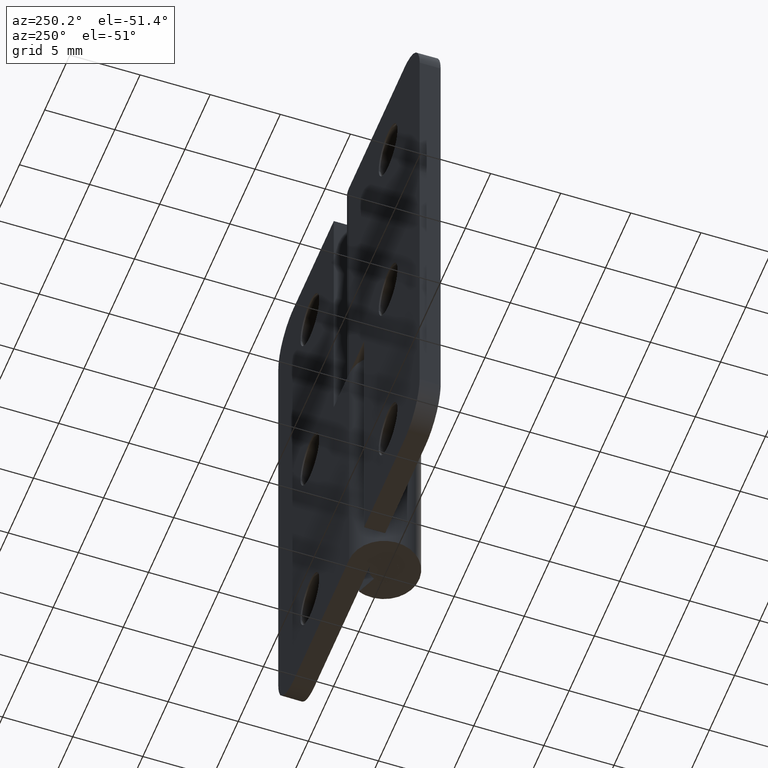
[diagram: clean part render]
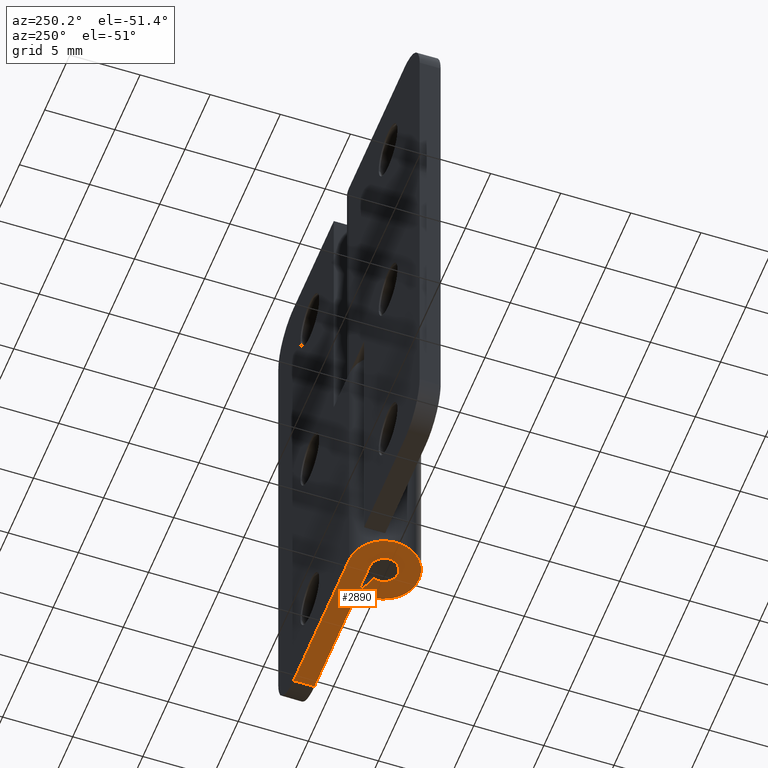
[diagram: same view with one face highlighted and labeled with its STEP entity id]
A machine part, auxiliary view. The second image highlights one B-rep face of the part: STEP entity #2890.
In plain terms, the highlighted face is a freeform B-spline surface patch.
Its self-contained STEP definition (entity closure, byte-faithful):
#2607=CARTESIAN_POINT('',(11.0,2.500000000000000,0.0));
#2608=VERTEX_POINT('',#2607);
#2631=CARTESIAN_POINT('',(11.0,1.0,0.0));
#2632=VERTEX_POINT('',#2631);
#2646=CARTESIAN_POINT('',(11.0,1.0,0.0));
#2647=CARTESIAN_POINT('',(11.0,2.500000000000000,0.0));
#2648=QUASI_UNIFORM_CURVE('',1,(#2646,#2647),.UNSPECIFIED.,.F.,.U.);
#2649=EDGE_CURVE('',#2632,#2608,#2648,.T.);
#2821=CARTESIAN_POINT('',(11.674224352545570,2.749347774544534,0.0));
#2822=CARTESIAN_POINT('',(-3.172210274295187,2.749347774544534,0.0));
#2823=CARTESIAN_POINT('',(11.674224352545570,-2.741295540468969,0.0));
#2824=CARTESIAN_POINT('',(-3.172210274295187,-2.741295540468969,0.0));
#2825=B_SPLINE_SURFACE_WITH_KNOTS('',1,1,((#2821,#2823),(#2822,#2824)),.UNSPECIFIED.,.F.,.F.,.U.,(2,2),(2,2),(0.0,14.846434626840759),(0.0,5.490643315013503),.UNSPECIFIED.);
#2826=CARTESIAN_POINT('',(0.0,1.0,0.0));
#2827=VERTEX_POINT('',#2826);
#2828=CARTESIAN_POINT('',(11.0,1.0,0.0));
#2829=CARTESIAN_POINT('',(0.0,1.0,0.0));
#2830=QUASI_UNIFORM_CURVE('',1,(#2828,#2829),.UNSPECIFIED.,.F.,.U.);
#2831=EDGE_CURVE('',#2632,#2827,#2830,.T.);
#2832=ORIENTED_EDGE('',*,*,#2831,.T.);
#2833=CARTESIAN_POINT('',(0.924986486387774,0.380000000000000,0.0));
#2834=VERTEX_POINT('',#2833);
#2835=CARTESIAN_POINT('',(0.0,1.0,0.0));
#2836=CARTESIAN_POINT('',(-0.741088266401817,1.0,0.0));
#2837=CARTESIAN_POINT('',(-0.956729425253506,0.290979048823272,0.0));
#2838=CARTESIAN_POINT('',(-1.172370584105195,-0.418041902353455,0.0));
#2839=CARTESIAN_POINT('',(-0.556776436283002,-0.830662386291807,0.0));
#2840=CARTESIAN_POINT('',(0.058817711539189,-1.243282870230159,0.0));
#2841=CARTESIAN_POINT('',(0.632708869579827,-0.774389750936192,0.0));
#2842=CARTESIAN_POINT('',(1.206600027620465,-0.305496631642225,0.0));
#2843=CARTESIAN_POINT('',(0.924986486387774,0.380000000000000,0.0));
#2851=(BOUNDED_CURVE()B_SPLINE_CURVE(2,(#2835,#2836,#2837,#2838,#2839,#2840,#2841,#2842,#2843),.UNSPECIFIED.,.F.,.U.)B_SPLINE_CURVE_WITH_KNOTS((3,2,2,2,3),(0.0,0.250000000000000,0.500000000000000,0.750000000000000,1.0),.UNSPECIFIED.)CURVE()GEOMETRIC_REPRESENTATION_ITEM()RATIONAL_B_SPLINE_CURVE((1.0,0.803423626993653,1.0,0.803423626993653,1.0,0.803423626993653,1.0,0.803423626993653,1.0))REPRESENTATION_ITEM(''));
#2852=EDGE_CURVE('',#2827,#2834,#2851,.T.);
#2853=ORIENTED_EDGE('',*,*,#2852,.T.);
#2854=CARTESIAN_POINT('',(2.312466215969435,0.950000000000000,0.0));
#2855=VERTEX_POINT('',#2854);
#2856=CARTESIAN_POINT('',(0.924986486387774,0.380000000000000,0.0));
#2857=CARTESIAN_POINT('',(2.312466215969435,0.950000000000000,0.0));
#2858=QUASI_UNIFORM_CURVE('',1,(#2856,#2857),.UNSPECIFIED.,.F.,.U.);
#2859=EDGE_CURVE('',#2834,#2855,#2858,.T.);
#2860=ORIENTED_EDGE('',*,*,#2859,.T.);
#2861=CARTESIAN_POINT('',(-1.530758E-016,2.500000000000000,0.0));
#2862=VERTEX_POINT('',#2861);
#2863=CARTESIAN_POINT('',(0.0,2.500000000000000,0.0));
#2864=CARTESIAN_POINT('',(-1.852720666004543,2.500000000000000,0.0));
#2865=CARTESIAN_POINT('',(-2.391823563133765,0.727447622058181,0.0));
#2866=CARTESIAN_POINT('',(-2.930926460262987,-1.045104755883638,0.0));
#2867=CARTESIAN_POINT('',(-1.391941090707506,-2.076655965729518,0.0));
#2868=CARTESIAN_POINT('',(0.147044278847974,-3.108207175575398,0.0));
#2869=CARTESIAN_POINT('',(1.581772173949567,-1.935974377340481,0.0));
#2870=CARTESIAN_POINT('',(3.016500069051162,-0.763741579105562,0.0));
#2871=CARTESIAN_POINT('',(2.312466215969435,0.950000000000000,0.0));
#2879=(BOUNDED_CURVE()B_SPLINE_CURVE(2,(#2863,#2864,#2865,#2866,#2867,#2868,#2869,#2870,#2871),.UNSPECIFIED.,.F.,.U.)B_SPLINE_CURVE_WITH_KNOTS((3,2,2,2,3),(0.0,0.250000000000000,0.500000000000000,0.750000000000000,1.0),.UNSPECIFIED.)CURVE()GEOMETRIC_REPRESENTATION_ITEM()RATIONAL_B_SPLINE_CURVE((1.0,0.803423626993653,1.0,0.803423626993653,1.0,0.803423626993653,1.0,0.803423626993653,1.0))REPRESENTATION_ITEM(''));
#2880=EDGE_CURVE('',#2862,#2855,#2879,.T.);
#2881=ORIENTED_EDGE('',*,*,#2880,.F.);
#2882=CARTESIAN_POINT('',(-1.530758E-016,2.500000000000000,0.0));
#2883=CARTESIAN_POINT('',(11.0,2.500000000000000,0.0));
#2884=QUASI_UNIFORM_CURVE('',1,(#2882,#2883),.UNSPECIFIED.,.F.,.U.);
#2885=EDGE_CURVE('',#2862,#2608,#2884,.T.);
#2886=ORIENTED_EDGE('',*,*,#2885,.T.);
#2887=ORIENTED_EDGE('',*,*,#2649,.F.);
#2888=EDGE_LOOP('',(#2832,#2853,#2860,#2881,#2886,#2887));
#2889=FACE_OUTER_BOUND('',#2888,.T.);
#2890=ADVANCED_FACE('',(#2889),#2825,.F.);